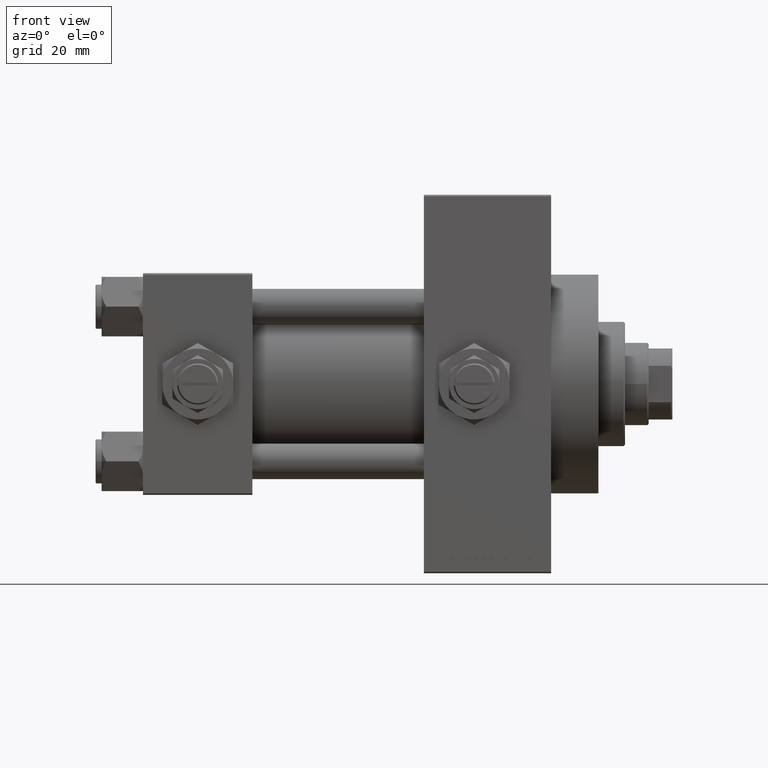
[diagram: clean part render]
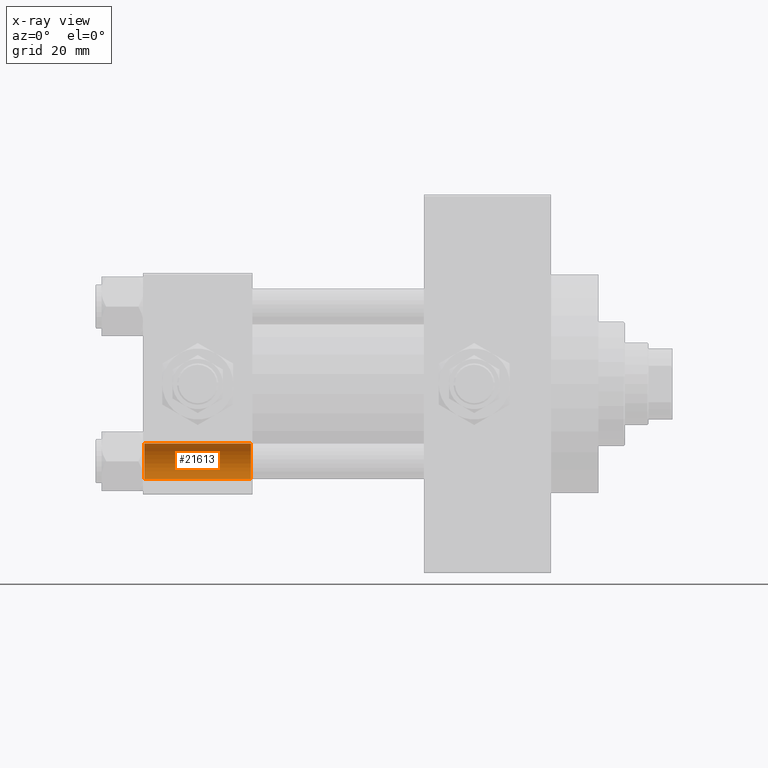
[diagram: x-ray — body ghosted, one internal face saturated and labeled with its STEP entity id]
A machine part, front view, then the same camera in x-ray: the body is ghosted and one INTERNAL B-rep face — a face not visible from any outside direction — is saturated and labeled: STEP entity #21613.
In plain terms, the highlighted cylindrical surface (edge-blend (fillet) strip) has radius 6 mm, axis along (-1, -0, -0).
Its self-contained STEP definition (entity closure, byte-faithful):
#734 = VERTEX_POINT ( 'NONE', #10526 ) ;
#2130 = CARTESIAN_POINT ( 'NONE',  ( 37.00000000000000711, 26.14999999999999858, -20.15000000000000213 ) ) ;
#2814 = CARTESIAN_POINT ( 'NONE',  ( 36.50000000000003553, 26.14999999999999858, -32.15000000000000568 ) ) ;
#3323 = EDGE_LOOP ( 'NONE', ( #29248, #14261, #32324, #42051 ) ) ;
#3899 = CIRCLE ( 'NONE', #39868, 6.000000000000001776 ) ;
#7317 = VECTOR ( 'NONE', #24883, 1000.000000000000000 ) ;
#7546 = LINE ( 'NONE', #34322, #44800 ) ;
#9010 = EDGE_CURVE ( 'NONE', #41370, #47330, #30815, .T. ) ;
#10526 = CARTESIAN_POINT ( 'NONE',  ( 0.5000000000000213163, 26.14999999999999858, -20.15000000000000213 ) ) ;
#12430 = AXIS2_PLACEMENT_3D ( 'NONE', #25302, #42004, #36583 ) ;
#13356 = CYLINDRICAL_SURFACE ( 'NONE', #18955, 6.000000000000001776 ) ;
#14261 = ORIENTED_EDGE ( 'NONE', *, *, #9010, .T. ) ;
#17114 = FACE_OUTER_BOUND ( 'NONE', #3323, .T. ) ;
#18955 = AXIS2_PLACEMENT_3D ( 'NONE', #39640, #24864, #40147 ) ;
#21613 = ADVANCED_FACE ( 'NONE', ( #17114 ), #13356, .F. ) ;
#22055 = DIRECTION ( 'NONE',  ( -1.000000000000000000, -0.000000000000000000, -0.000000000000000000 ) ) ;
#22598 = CARTESIAN_POINT ( 'NONE',  ( 0.5000000000000213163, 26.14999999999999858, -32.15000000000000568 ) ) ;
#24543 = EDGE_CURVE ( 'NONE', #734, #25694, #3899, .T. ) ;
#24864 = DIRECTION ( 'NONE',  ( -1.000000000000000000, -0.000000000000000000, -0.000000000000000000 ) ) ;
#24883 = DIRECTION ( 'NONE',  ( -1.000000000000000000, -0.000000000000000000, -0.000000000000000000 ) ) ;
#25302 = CARTESIAN_POINT ( 'NONE',  ( 36.50000000000003553, 26.14999999999999858, -26.15000000000000213 ) ) ;
#25694 = VERTEX_POINT ( 'NONE', #22598 ) ;
#26906 = DIRECTION ( 'NONE',  ( -1.000000000000000000, 0.000000000000000000, 0.000000000000000000 ) ) ;
#29248 = ORIENTED_EDGE ( 'NONE', *, *, #47286, .F. ) ;
#30394 = EDGE_CURVE ( 'NONE', #47330, #734, #36415, .T. ) ;
#30815 = CIRCLE ( 'NONE', #12430, 6.000000000000001776 ) ;
#31794 = CARTESIAN_POINT ( 'NONE',  ( 36.50000000000003553, 26.14999999999999858, -20.15000000000000213 ) ) ;
#32324 = ORIENTED_EDGE ( 'NONE', *, *, #30394, .T. ) ;
#34170 = CARTESIAN_POINT ( 'NONE',  ( 0.5000000000000213163, 26.14999999999999858, -26.15000000000000213 ) ) ;
#34322 = CARTESIAN_POINT ( 'NONE',  ( 37.00000000000000711, 26.14999999999999858, -32.15000000000000568 ) ) ;
#36415 = LINE ( 'NONE', #2130, #7317 ) ;
#36583 = DIRECTION ( 'NONE',  ( 0.000000000000000000, 0.000000000000000000, 1.000000000000000000 ) ) ;
#38419 = DIRECTION ( 'NONE',  ( 0.000000000000000000, 0.000000000000000000, 1.000000000000000000 ) ) ;
#39640 = CARTESIAN_POINT ( 'NONE',  ( 37.00000000000000711, 26.14999999999999858, -26.15000000000000213 ) ) ;
#39868 = AXIS2_PLACEMENT_3D ( 'NONE', #34170, #26906, #38419 ) ;
#40147 = DIRECTION ( 'NONE',  ( 0.000000000000000000, 0.000000000000000000, 1.000000000000000000 ) ) ;
#41370 = VERTEX_POINT ( 'NONE', #2814 ) ;
#42004 = DIRECTION ( 'NONE',  ( 1.000000000000000000, -0.000000000000000000, -0.000000000000000000 ) ) ;
#42051 = ORIENTED_EDGE ( 'NONE', *, *, #24543, .T. ) ;
#44800 = VECTOR ( 'NONE', #22055, 1000.000000000000000 ) ;
#47286 = EDGE_CURVE ( 'NONE', #41370, #25694, #7546, .T. ) ;
#47330 = VERTEX_POINT ( 'NONE', #31794 ) ;